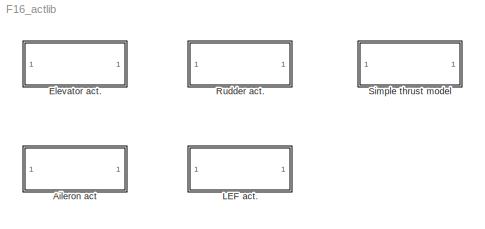
MODEL F16_actlib
KIND model
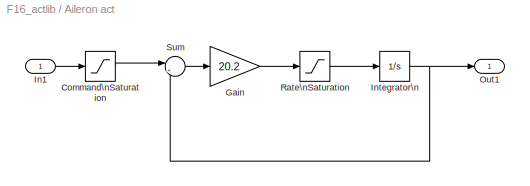
BLOCK [SubSystem] Aileron act
  MaskDisplay = port_label('output', 1, 'da')\nport_label('input', 1, 'da_ref')
  MaskIconFrame = on
  MaskIconOpaque = on
  MaskIconRotate = none
  MaskIconUnits = autoscale
  MinAlgLoopOccurrences = off
  Ports = [1, 1]
  RTWSystemCode = Auto
BLOCK [Saturate] Aileron act/Command\nSaturation
  LowerLimit = -21.5*pi/180
  UpperLimit = 21.5*pi/180
BLOCK [Gain] Aileron act/Gain
  Gain = 20.2
  OutDataType = sfix(16)
  OutScaling = 2^0
  ParameterDataType = sfix(16)
  ParameterScaling = 2^0
BLOCK [Inport] Aileron act/In1
  IconDisplay = Port number
  OutDataType = sfix(16)
  OutScaling = 2^0
BLOCK [Integrator] Aileron act/Integrator\n
  InitialCondition = init_u(3)
  LowerSaturationLimit = -21.5
  Ports = [1, 1]
  UpperSaturationLimit = 21.5
BLOCK [Outport] Aileron act/Out1
  IconDisplay = Port number
  OutDataType = sfix(16)
  OutScaling = 2^0
BLOCK [Saturate] Aileron act/Rate\nSaturation
  LowerLimit = -80*pi/180
  UpperLimit = 80*pi/180
BLOCK [Sum] Aileron act/Sum
  IconShape = round
  Inputs = |+-
  OutDataType = sfix(16)
  OutScaling = 2^0
  Ports = [2, 1]
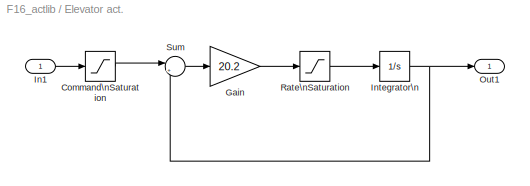
BLOCK [SubSystem] Elevator act.
  MaskDisplay = port_label('output', 1, 'de')\nport_label('input', 1, 'de_ref')
  MaskIconFrame = on
  MaskIconOpaque = on
  MaskIconRotate = none
  MaskIconUnits = autoscale
  MinAlgLoopOccurrences = off
  Ports = [1, 1]
  RTWSystemCode = Auto
BLOCK [Saturate] Elevator act./Command\nSaturation
  LowerLimit = -25*pi/180
  UpperLimit = 25*pi/180
BLOCK [Gain] Elevator act./Gain
  Gain = 20.2
  OutDataType = sfix(16)
  OutScaling = 2^0
  ParameterDataType = sfix(16)
  ParameterScaling = 2^0
BLOCK [Inport] Elevator act./In1
  IconDisplay = Port number
  OutDataType = sfix(16)
  OutScaling = 2^0
BLOCK [Integrator] Elevator act./Integrator\n
  InitialCondition = init_u(2)
  LowerSaturationLimit = -25
  Ports = [1, 1]
  UpperSaturationLimit = 25
BLOCK [Outport] Elevator act./Out1
  IconDisplay = Port number
  OutDataType = sfix(16)
  OutScaling = 2^0
BLOCK [Saturate] Elevator act./Rate\nSaturation
  LowerLimit = -60*pi/180
  UpperLimit = 60*pi/180
BLOCK [Sum] Elevator act./Sum
  IconShape = round
  Inputs = |+-
  OutDataType = sfix(16)
  OutScaling = 2^0
  Ports = [2, 1]
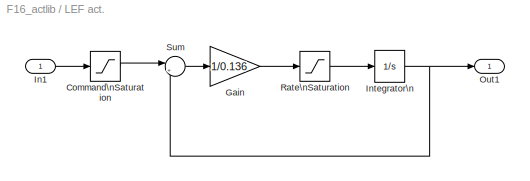
BLOCK [SubSystem] LEF act.
  MaskDisplay = port_label('output', 1, 'dlef')\nport_label('input', 1, 'dlef_ref')
  MaskIconFrame = on
  MaskIconOpaque = on
  MaskIconRotate = none
  MaskIconUnits = autoscale
  MinAlgLoopOccurrences = off
  Ports = [1, 1]
  RTWSystemCode = Auto
BLOCK [Saturate] LEF act./Command\nSaturation
  LowerLimit = 0
  UpperLimit = 25
BLOCK [Gain] LEF act./Gain
  Gain = 1/0.136
  OutDataType = sfix(16)
  OutScaling = 2^0
  ParameterDataType = sfix(16)
  ParameterScaling = 2^0
BLOCK [Inport] LEF act./In1
  IconDisplay = Port number
  OutDataType = sfix(16)
  OutScaling = 2^0
BLOCK [Integrator] LEF act./Integrator\n
  InitialCondition = init_dlef
  LowerSaturationLimit = -25
  Ports = [1, 1]
  UpperSaturationLimit = 25
BLOCK [Outport] LEF act./Out1
  IconDisplay = Port number
  OutDataType = sfix(16)
  OutScaling = 2^0
BLOCK [Saturate] LEF act./Rate\nSaturation
  LowerLimit = -25
  UpperLimit = 25
BLOCK [Sum] LEF act./Sum
  IconShape = round
  Inputs = |+-
  OutDataType = sfix(16)
  OutScaling = 2^0
  Ports = [2, 1]
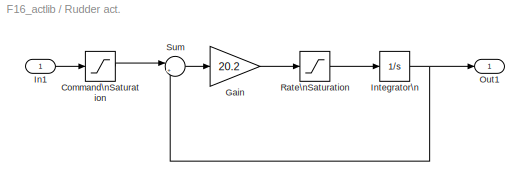
BLOCK [SubSystem] Rudder act.
  MaskDisplay = port_label('output', 1, 'dr')\nport_label('input', 1, 'dr_ref')
  MaskIconFrame = on
  MaskIconOpaque = on
  MaskIconRotate = none
  MaskIconUnits = autoscale
  MinAlgLoopOccurrences = off
  Ports = [1, 1]
  RTWSystemCode = Auto
BLOCK [Saturate] Rudder act./Command\nSaturation
  LowerLimit = -30*pi/180
  UpperLimit = 30*pi/180
BLOCK [Gain] Rudder act./Gain
  Gain = 20.2
  OutDataType = sfix(16)
  OutScaling = 2^0
  ParameterDataType = sfix(16)
  ParameterScaling = 2^0
BLOCK [Inport] Rudder act./In1
  IconDisplay = Port number
  OutDataType = sfix(16)
  OutScaling = 2^0
BLOCK [Integrator] Rudder act./Integrator\n
  InitialCondition = init_u(4)
  LowerSaturationLimit = -25
  Ports = [1, 1]
  UpperSaturationLimit = 25
BLOCK [Outport] Rudder act./Out1
  IconDisplay = Port number
  OutDataType = sfix(16)
  OutScaling = 2^0
BLOCK [Saturate] Rudder act./Rate\nSaturation
  LowerLimit = -120*pi/180
  UpperLimit = 120*pi/180
BLOCK [Sum] Rudder act./Sum
  IconShape = round
  Inputs = |+-
  OutDataType = sfix(16)
  OutScaling = 2^0
  Ports = [2, 1]
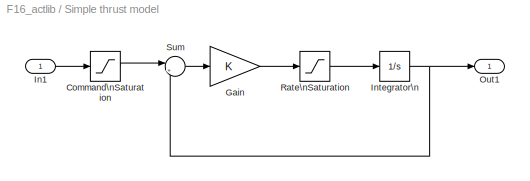
BLOCK [SubSystem] Simple thrust model
  MaskDisplay = port_label('output', 1, 'T')\nport_label('input', 1, 'T_ref')
  MaskIconFrame = on
  MaskIconOpaque = on
  MaskIconRotate = none
  MaskIconUnits = autoscale
  MinAlgLoopOccurrences = off
  Ports = [1, 1]
  RTWSystemCode = Auto
BLOCK [Saturate] Simple thrust model/Command\nSaturation
  LowerLimit = 4500
  UpperLimit = 85000
BLOCK [Gain] Simple thrust model/Gain
  OutDataType = sfix(16)
  OutScaling = 2^0
  ParameterDataType = sfix(16)
  ParameterScaling = 2^0
BLOCK [Inport] Simple thrust model/In1
  IconDisplay = Port number
  OutDataType = sfix(16)
  OutScaling = 2^0
BLOCK [Integrator] Simple thrust model/Integrator\n
  InitialCondition = init_u(1)
  LowerSaturationLimit = -45000
  Ports = [1, 1]
  UpperSaturationLimit = 45000
BLOCK [Outport] Simple thrust model/Out1
  IconDisplay = Port number
  OutDataType = sfix(16)
  OutScaling = 2^0
BLOCK [Saturate] Simple thrust model/Rate\nSaturation
  LowerLimit = -45000
  UpperLimit = 45000
BLOCK [Sum] Simple thrust model/Sum
  IconShape = round
  Inputs = |+-
  OutDataType = sfix(16)
  OutScaling = 2^0
  Ports = [2, 1]
LINE Aileron act/Command\nSaturation:1 -> Aileron act/Sum:1
LINE Aileron act/Gain:1 -> Aileron act/Rate\nSaturation:1
LINE Aileron act/In1:1 -> Aileron act/Command\nSaturation:1
NET Aileron act/Integrator\n:1 -> Aileron act/Out1:1, Aileron act/Sum:2
LINE Aileron act/Rate\nSaturation:1 -> Aileron act/Integrator\n:1
LINE Aileron act/Sum:1 -> Aileron act/Gain:1
LINE Elevator act./Command\nSaturation:1 -> Elevator act./Sum:1
LINE Elevator act./Gain:1 -> Elevator act./Rate\nSaturation:1
LINE Elevator act./In1:1 -> Elevator act./Command\nSaturation:1
NET Elevator act./Integrator\n:1 -> Elevator act./Out1:1, Elevator act./Sum:2
LINE Elevator act./Rate\nSaturation:1 -> Elevator act./Integrator\n:1
LINE Elevator act./Sum:1 -> Elevator act./Gain:1
LINE LEF act./Command\nSaturation:1 -> LEF act./Sum:1
LINE LEF act./Gain:1 -> LEF act./Rate\nSaturation:1
LINE LEF act./In1:1 -> LEF act./Command\nSaturation:1
NET LEF act./Integrator\n:1 -> LEF act./Out1:1, LEF act./Sum:2
LINE LEF act./Rate\nSaturation:1 -> LEF act./Integrator\n:1
LINE LEF act./Sum:1 -> LEF act./Gain:1
LINE Rudder act./Command\nSaturation:1 -> Rudder act./Sum:1
LINE Rudder act./Gain:1 -> Rudder act./Rate\nSaturation:1
LINE Rudder act./In1:1 -> Rudder act./Command\nSaturation:1
NET Rudder act./Integrator\n:1 -> Rudder act./Out1:1, Rudder act./Sum:2
LINE Rudder act./Rate\nSaturation:1 -> Rudder act./Integrator\n:1
LINE Rudder act./Sum:1 -> Rudder act./Gain:1
LINE Simple thrust model/Command\nSaturation:1 -> Simple thrust model/Sum:1
LINE Simple thrust model/Gain:1 -> Simple thrust model/Rate\nSaturation:1
LINE Simple thrust model/In1:1 -> Simple thrust model/Command\nSaturation:1
NET Simple thrust model/Integrator\n:1 -> Simple thrust model/Out1:1, Simple thrust model/Sum:2
LINE Simple thrust model/Rate\nSaturation:1 -> Simple thrust model/Integrator\n:1
LINE Simple thrust model/Sum:1 -> Simple thrust model/Gain:1
note: NET lines group one-source signal fan-out (src -> all destinations, sorted); 1:1 wires keep LINE
